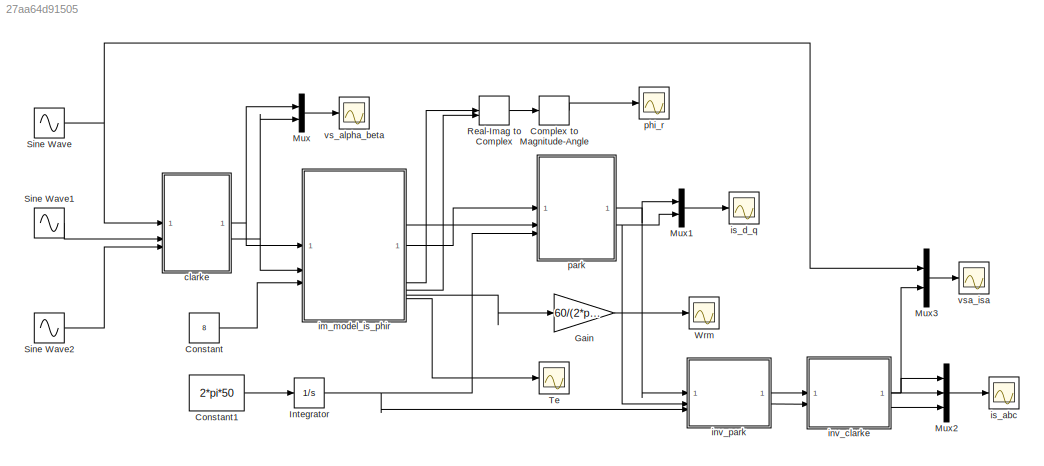
MODEL slx_27aa64d91505
KIND model
CONFIG AbsTol = auto
CONFIG EnableMultiTasking = off
CONFIG FixedStep = auto
CONFIG MaxStep = 0.0005
CONFIG MinStep = auto
CONFIG RelTol = 1e-3
CONFIG SampleTimeConstraint = Unconstrained
CONFIG SolverName = VariableStepAuto
CONFIG StartTime = 0.0
CONFIG StopTime = 0.5
BLOCK [ComplexToMagnitudeAngle] Complex to Magnitude-Angle
BLOCK [Constant] Constant
  Value = 8
BLOCK [Constant] Constant1
  Value = 2*pi*50
BLOCK [Gain] Gain
  Gain = 60/(2*pi)
BLOCK [Integrator] Integrator
BLOCK [Mux] Mux
  DisplayOption = bar
  Inputs = 2
BLOCK [Mux] Mux1
  DisplayOption = bar
  Inputs = 2
BLOCK [Mux] Mux2
  DisplayOption = bar
  Inputs = 3
BLOCK [Mux] Mux3
  DisplayOption = bar
  Inputs = 2
BLOCK [RealImagToComplex] Real-Imag to Complex
BLOCK [Sin] Sine Wave
  Amplitude = 110*1.414
  Frequency = 2*pi*50
  SampleTime = 0
BLOCK [Sin] Sine Wave1
  Amplitude = 110*1.414
  Frequency = 2*pi*50
  Phase = -2*pi/3
  SampleTime = 0
BLOCK [Sin] Sine Wave2
  Amplitude = 110*1.414
  Frequency = 2*pi*50
  Phase = -4*pi/3
  SampleTime = 0
BLOCK [Scope] Te
  Floating = off
  NumInputPorts = 1
  ScopeSpecificationString = Simulink.scopes.TimeScopeBlockCfg('CurrentConfiguration', extmgr.ConfigurationSet(extmgr.Configuration('Core','General UI',true),extmgr.Configuration('Core','Source UI',true),extmgr.Configuration('Sources','WiredSimulink',true,'DataLoggingVariableName','ScopeData1'),extmgr.Configuration('Visuals','Time Domain',true,'SerializedDisplays',{struct('MinYLimReal','8.54389','MaxYLimReal','9.85822','YLabe...<+1448ch>
BLOCK [Scope] Wrm
  Floating = off
  NumInputPorts = 1
  ScopeSpecificationString = Simulink.scopes.TimeScopeBlockCfg('CurrentConfiguration', extmgr.ConfigurationSet(extmgr.Configuration('Core','General UI',true,'FigureColor',[1 1 1]),extmgr.Configuration('Core','Source UI',true),extmgr.Configuration('Sources','WiredSimulink',true),extmgr.Configuration('Visuals','Time Domain',true,'SerializedDisplays',{struct('MinYLimReal','1470.75556','MaxYLimReal','1497.46449','YLabelReal','','...<+1542ch>
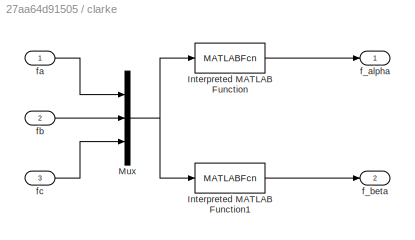
BLOCK [SubSystem] clarke
BLOCK [MATLABFcn] clarke/Interpreted MATLAB Function
  MATLABFcn = 2/3*(u(1)-u(2)/2-u(3)/2)
BLOCK [MATLABFcn] clarke/Interpreted MATLAB Function1
  MATLABFcn = 2/3*(sqrt(3)*u(2)/2-sqrt(3)*u(3)/2)
BLOCK [Mux] clarke/Mux
  DisplayOption = bar
  Inputs = 3
BLOCK [Outport] clarke/f_alpha
BLOCK [Outport] clarke/f_beta
  Port = 2
BLOCK [Inport] clarke/fa
BLOCK [Inport] clarke/fb
  Port = 2
BLOCK [Inport] clarke/fc
  Port = 3
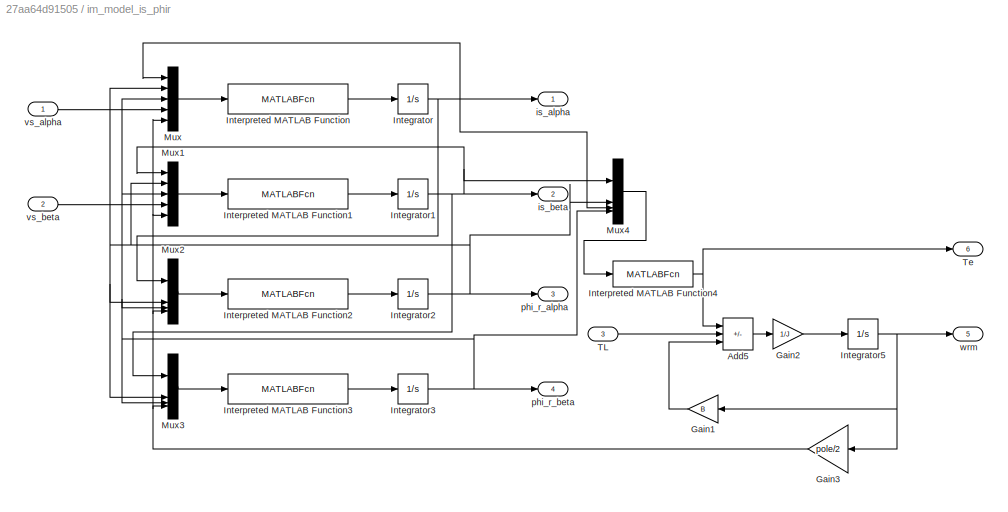
BLOCK [SubSystem] im_model_is_phir
BLOCK [Sum] im_model_is_phir/Add5
  IconShape = rectangular
  Inputs = +--
BLOCK [Gain] im_model_is_phir/Gain1
  Gain = B
BLOCK [Gain] im_model_is_phir/Gain2
  Gain = 1/J
BLOCK [Gain] im_model_is_phir/Gain3
  Gain = pole/2
BLOCK [Integrator] im_model_is_phir/Integrator
BLOCK [Integrator] im_model_is_phir/Integrator1
BLOCK [Integrator] im_model_is_phir/Integrator2
BLOCK [Integrator] im_model_is_phir/Integrator3
BLOCK [Integrator] im_model_is_phir/Integrator5
BLOCK [MATLABFcn] im_model_is_phir/Interpreted MATLAB Function
  MATLABFcn = K1*u(1)+K2*u(2)+K3*u(5)*u(3)+K4*u(4)
BLOCK [MATLABFcn] im_model_is_phir/Interpreted MATLAB Function1
  MATLABFcn = K1*u(1)-K3*u(5)*u(2)+K2*u(3)+K4*u(4)
BLOCK [MATLABFcn] im_model_is_phir/Interpreted MATLAB Function2
  MATLABFcn = K5*u(1)+K6*u(2)-u(4)*u(3)
BLOCK [MATLABFcn] im_model_is_phir/Interpreted MATLAB Function3
  MATLABFcn = K5*u(1)+u(4)*u(2)+K6*u(3)
BLOCK [MATLABFcn] im_model_is_phir/Interpreted MATLAB Function4
  MATLABFcn = (u(1)*u(2)-u(3)*u(4))*3*pole*Lm/(4*Lr)
BLOCK [Mux] im_model_is_phir/Mux
  DisplayOption = bar
  Inputs = 5
BLOCK [Mux] im_model_is_phir/Mux1
  DisplayOption = bar
  Inputs = 5
BLOCK [Mux] im_model_is_phir/Mux2
  DisplayOption = bar
BLOCK [Mux] im_model_is_phir/Mux3
  DisplayOption = bar
BLOCK [Mux] im_model_is_phir/Mux4
  DisplayOption = bar
BLOCK [Inport] im_model_is_phir/TL
  Port = 3
BLOCK [Outport] im_model_is_phir/Te
  Port = 6
BLOCK [Outport] im_model_is_phir/is_alpha
BLOCK [Outport] im_model_is_phir/is_beta
  Port = 2
BLOCK [Outport] im_model_is_phir/phi_r_alpha
  Port = 3
BLOCK [Outport] im_model_is_phir/phi_r_beta
  Port = 4
BLOCK [Inport] im_model_is_phir/vs_alpha
BLOCK [Inport] im_model_is_phir/vs_beta
  Port = 2
BLOCK [Outport] im_model_is_phir/wrm
  Port = 5
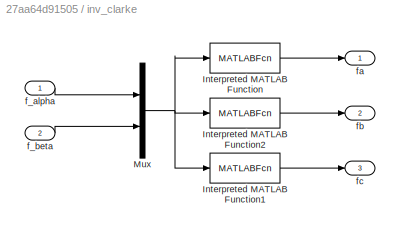
BLOCK [SubSystem] inv_clarke
BLOCK [MATLABFcn] inv_clarke/Interpreted MATLAB Function
  MATLABFcn = u(1)
BLOCK [MATLABFcn] inv_clarke/Interpreted MATLAB Function1
  MATLABFcn = -u(1)/2-sqrt(3)*u(2)/2
BLOCK [MATLABFcn] inv_clarke/Interpreted MATLAB Function2
  MATLABFcn = -u(1)/2+sqrt(3)*u(2)/2
BLOCK [Mux] inv_clarke/Mux
  DisplayOption = bar
  Inputs = 2
BLOCK [Inport] inv_clarke/f_alpha
BLOCK [Inport] inv_clarke/f_beta
  Port = 2
BLOCK [Outport] inv_clarke/fa
BLOCK [Outport] inv_clarke/fb
  Port = 2
BLOCK [Outport] inv_clarke/fc
  Port = 3
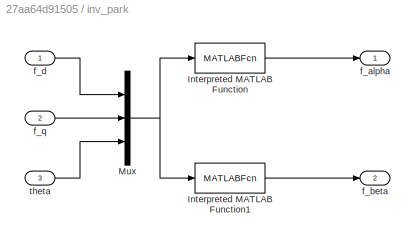
BLOCK [SubSystem] inv_park
BLOCK [MATLABFcn] inv_park/Interpreted MATLAB Function
  MATLABFcn = cos(u(3))*u(1)-sin(u(3))*u(2)
BLOCK [MATLABFcn] inv_park/Interpreted MATLAB Function1
  MATLABFcn = sin(u(3))*u(1)+cos(u(3))*u(2)
BLOCK [Mux] inv_park/Mux
  DisplayOption = bar
  Inputs = 3
BLOCK [Outport] inv_park/f_alpha
BLOCK [Outport] inv_park/f_beta
  Port = 2
BLOCK [Inport] inv_park/f_d
BLOCK [Inport] inv_park/f_q
  Port = 2
BLOCK [Inport] inv_park/theta
  Port = 3
BLOCK [Scope] is_abc
  Floating = off
  NumInputPorts = 1
  ScopeSpecificationString = Simulink.scopes.TimeScopeBlockCfg('CurrentConfiguration', extmgr.ConfigurationSet(extmgr.Configuration('Core','General UI',true,'FigureColor',[1 1 1]),extmgr.Configuration('Core','Source UI',true),extmgr.Configuration('Sources','WiredSimulink',true,'DataLoggingVariableName','ScopeData4'),extmgr.Configuration('Visuals','Time Domain',true,'SerializedDisplays',{struct('MinYLimReal','-12.58881','MaxYL...<+1603ch>
BLOCK [Scope] is_d_q
  Floating = off
  NumInputPorts = 1
  ScopeSpecificationString = Simulink.scopes.TimeScopeBlockCfg('CurrentConfiguration', extmgr.ConfigurationSet(extmgr.Configuration('Core','General UI',true,'FigureColor',[1 1 1]),extmgr.Configuration('Core','Source UI',true),extmgr.Configuration('Sources','WiredSimulink',true,'DataLoggingVariableName','ScopeData3'),extmgr.Configuration('Visuals','Time Domain',true,'SerializedDisplays',{struct('MinYLimReal','-4.69249','MaxYLi...<+1572ch>
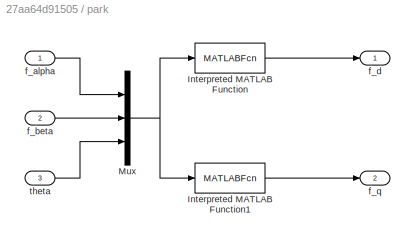
BLOCK [SubSystem] park
BLOCK [MATLABFcn] park/Interpreted MATLAB Function
  MATLABFcn = cos(u(3))*u(1)+sin(u(3))*u(2)
BLOCK [MATLABFcn] park/Interpreted MATLAB Function1
  MATLABFcn = -sin(u(3))*u(1)+cos(u(3))*u(2)
BLOCK [Mux] park/Mux
  DisplayOption = bar
  Inputs = 3
BLOCK [Inport] park/f_alpha
BLOCK [Inport] park/f_beta
  Port = 2
BLOCK [Outport] park/f_d
BLOCK [Outport] park/f_q
  Port = 2
BLOCK [Inport] park/theta
  Port = 3
BLOCK [Scope] phi_r
  Floating = off
  NumInputPorts = 1
  ScopeSpecificationString = Simulink.scopes.TimeScopeBlockCfg('CurrentConfiguration', extmgr.ConfigurationSet(extmgr.Configuration('Core','General UI',true,'FigureColor',[1 1 1]),extmgr.Configuration('Core','Source UI',true),extmgr.Configuration('Sources','WiredSimulink',true,'DataLoggingVariableName','ScopeData1'),extmgr.Configuration('Visuals','Time Domain',true,'SerializedDisplays',{struct('MinYLimReal','-0.05748','MaxYLi...<+1583ch>
BLOCK [Scope] vs_alpha_beta
  Floating = off
  NumInputPorts = 1
  ScopeSpecificationString = Simulink.scopes.TimeScopeBlockCfg('CurrentConfiguration', extmgr.ConfigurationSet(extmgr.Configuration('Core','General UI',true,'FigureColor',[1 1 1]),extmgr.Configuration('Core','Source UI',true),extmgr.Configuration('Sources','WiredSimulink',true,'DataLoggingVariableName','ScopeData2'),extmgr.Configuration('Visuals','Time Domain',true,'SerializedDisplays',{struct('MinYLimReal','-324.28654','MaxY...<+1588ch>
BLOCK [Scope] vsa_isa
  Floating = off
  NumInputPorts = 1
  ScopeSpecificationString = Simulink.scopes.TimeScopeBlockCfg('CurrentConfiguration', extmgr.ConfigurationSet(extmgr.Configuration('Core','General UI',true,'FigureColor',[1 1 1]),extmgr.Configuration('Core','Source UI',true),extmgr.Configuration('Sources','WiredSimulink',true,'DataLoggingVariableName','ScopeData5'),extmgr.Configuration('Visuals','Time Domain',true,'SerializedDisplays',{struct('MinYLimReal','-388.53478','MaxY...<+1569ch>
LINE Complex to Magnitude-Angle:1 -> phi_r:1
LINE Constant1:1 -> Integrator:1
LINE Constant:1 -> im_model_is_phir:3
LINE Gain:1 -> Wrm:1
NET Integrator:1 -> inv_park:3, park:3
LINE Mux1:1 -> is_d_q:1
LINE Mux2:1 -> is_abc:1
LINE Mux3:1 -> vsa_isa:1
LINE Mux:1 -> vs_alpha_beta:1
LINE Real-Imag to Complex:1 -> Complex to Magnitude-Angle:1
LINE Sine Wave1:1 -> clarke:2
LINE Sine Wave2:1 -> clarke:3
NET Sine Wave:1 -> Mux3:1, clarke:1
LINE clarke/Interpreted MATLAB Function1:1 -> clarke/f_beta:1
LINE clarke/Interpreted MATLAB Function:1 -> clarke/f_alpha:1
NET clarke/Mux:1 -> clarke/Interpreted MATLAB Function1:1, clarke/Interpreted MATLAB Function:1
LINE clarke/fa:1 -> clarke/Mux:1
LINE clarke/fb:1 -> clarke/Mux:2
LINE clarke/fc:1 -> clarke/Mux:3
NET clarke:1 -> Mux:1, im_model_is_phir:1
NET clarke:2 -> Mux:2, im_model_is_phir:2
LINE im_model_is_phir/Add5:1 -> im_model_is_phir/Gain2:1
LINE im_model_is_phir/Gain1:1 -> im_model_is_phir/Add5:3
LINE im_model_is_phir/Gain2:1 -> im_model_is_phir/Integrator5:1
NET im_model_is_phir/Gain3:1 -> im_model_is_phir/Mux1:5, im_model_is_phir/Mux2:4, im_model_is_phir/Mux3:4, im_model_is_phir/Mux:5
NET im_model_is_phir/Integrator1:1 -> im_model_is_phir/Mux1:1, im_model_is_phir/Mux3:1, im_model_is_phir/Mux4:1, im_model_is_phir/is_beta:1
NET im_model_is_phir/Integrator2:1 -> im_model_is_phir/Mux1:2, im_model_is_phir/Mux2:2, im_model_is_phir/Mux3:2, im_model_is_phir/Mux4:2, im_model_is_phir/Mux:2, im_model_is_phir/phi_r_alpha:1
NET im_model_is_phir/Integrator3:1 -> im_model_is_phir/Mux1:3, im_model_is_phir/Mux2:3, im_model_is_phir/Mux3:3, im_model_is_phir/Mux4:4, im_model_is_phir/Mux:3, im_model_is_phir/phi_r_beta:1
NET im_model_is_phir/Integrator5:1 -> im_model_is_phir/Gain1:1, im_model_is_phir/Gain3:1, im_model_is_phir/wrm:1
NET im_model_is_phir/Integrator:1 -> im_model_is_phir/Mux2:1, im_model_is_phir/Mux4:3, im_model_is_phir/Mux:1, im_model_is_phir/is_alpha:1
LINE im_model_is_phir/Interpreted MATLAB Function1:1 -> im_model_is_phir/Integrator1:1
LINE im_model_is_phir/Interpreted MATLAB Function2:1 -> im_model_is_phir/Integrator2:1
LINE im_model_is_phir/Interpreted MATLAB Function3:1 -> im_model_is_phir/Integrator3:1
NET im_model_is_phir/Interpreted MATLAB Function4:1 -> im_model_is_phir/Add5:1, im_model_is_phir/Te:1
LINE im_model_is_phir/Interpreted MATLAB Function:1 -> im_model_is_phir/Integrator:1
LINE im_model_is_phir/Mux1:1 -> im_model_is_phir/Interpreted MATLAB Function1:1
LINE im_model_is_phir/Mux2:1 -> im_model_is_phir/Interpreted MATLAB Function2:1
LINE im_model_is_phir/Mux3:1 -> im_model_is_phir/Interpreted MATLAB Function3:1
LINE im_model_is_phir/Mux4:1 -> im_model_is_phir/Interpreted MATLAB Function4:1
LINE im_model_is_phir/Mux:1 -> im_model_is_phir/Interpreted MATLAB Function:1
LINE im_model_is_phir/TL:1 -> im_model_is_phir/Add5:2
LINE im_model_is_phir/vs_alpha:1 -> im_model_is_phir/Mux:4
LINE im_model_is_phir/vs_beta:1 -> im_model_is_phir/Mux1:4
LINE im_model_is_phir:1 -> park:1
LINE im_model_is_phir:2 -> park:2
LINE im_model_is_phir:3 -> Real-Imag to Complex:1
LINE im_model_is_phir:4 -> Real-Imag to Complex:2
LINE im_model_is_phir:5 -> Gain:1
LINE im_model_is_phir:6 -> Te:1
LINE inv_clarke/Interpreted MATLAB Function1:1 -> inv_clarke/fc:1
LINE inv_clarke/Interpreted MATLAB Function2:1 -> inv_clarke/fb:1
LINE inv_clarke/Interpreted MATLAB Function:1 -> inv_clarke/fa:1
NET inv_clarke/Mux:1 -> inv_clarke/Interpreted MATLAB Function1:1, inv_clarke/Interpreted MATLAB Function2:1, inv_clarke/Interpreted MATLAB Function:1
LINE inv_clarke/f_alpha:1 -> inv_clarke/Mux:1
LINE inv_clarke/f_beta:1 -> inv_clarke/Mux:2
NET inv_clarke:1 -> Mux2:1, Mux3:2
LINE inv_clarke:2 -> Mux2:2
LINE inv_clarke:3 -> Mux2:3
LINE inv_park/Interpreted MATLAB Function1:1 -> inv_park/f_beta:1
LINE inv_park/Interpreted MATLAB Function:1 -> inv_park/f_alpha:1
NET inv_park/Mux:1 -> inv_park/Interpreted MATLAB Function1:1, inv_park/Interpreted MATLAB Function:1
LINE inv_park/f_d:1 -> inv_park/Mux:1
LINE inv_park/f_q:1 -> inv_park/Mux:2
LINE inv_park/theta:1 -> inv_park/Mux:3
LINE inv_park:1 -> inv_clarke:1
LINE inv_park:2 -> inv_clarke:2
LINE park/Interpreted MATLAB Function1:1 -> park/f_q:1
LINE park/Interpreted MATLAB Function:1 -> park/f_d:1
NET park/Mux:1 -> park/Interpreted MATLAB Function1:1, park/Interpreted MATLAB Function:1
LINE park/f_alpha:1 -> park/Mux:1
LINE park/f_beta:1 -> park/Mux:2
LINE park/theta:1 -> park/Mux:3
NET park:1 -> Mux1:1, inv_park:1
NET park:2 -> Mux1:2, inv_park:2
note: NET lines group one-source signal fan-out (src -> all destinations, sorted); 1:1 wires keep LINE
